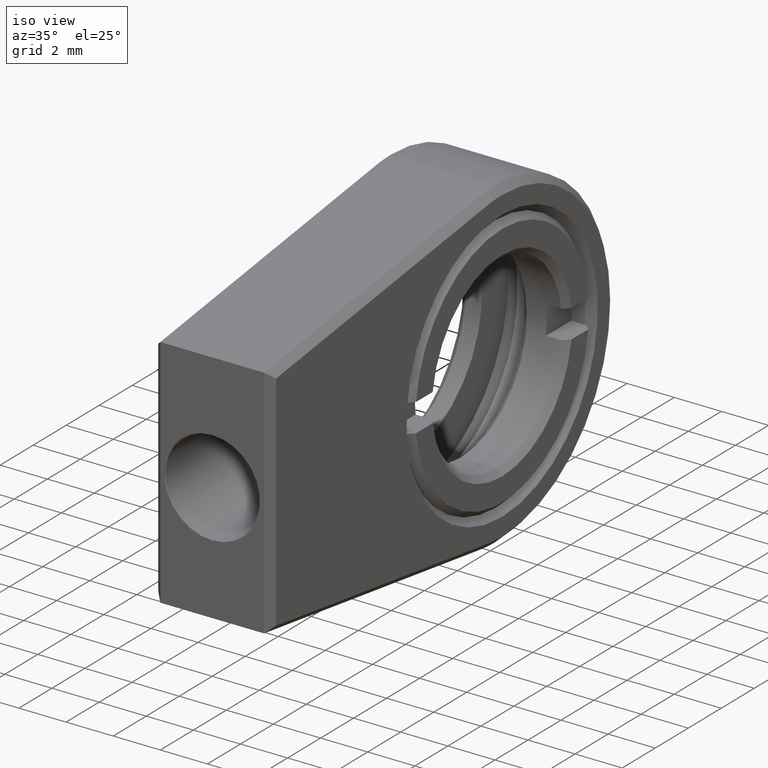
[diagram: clean part render]
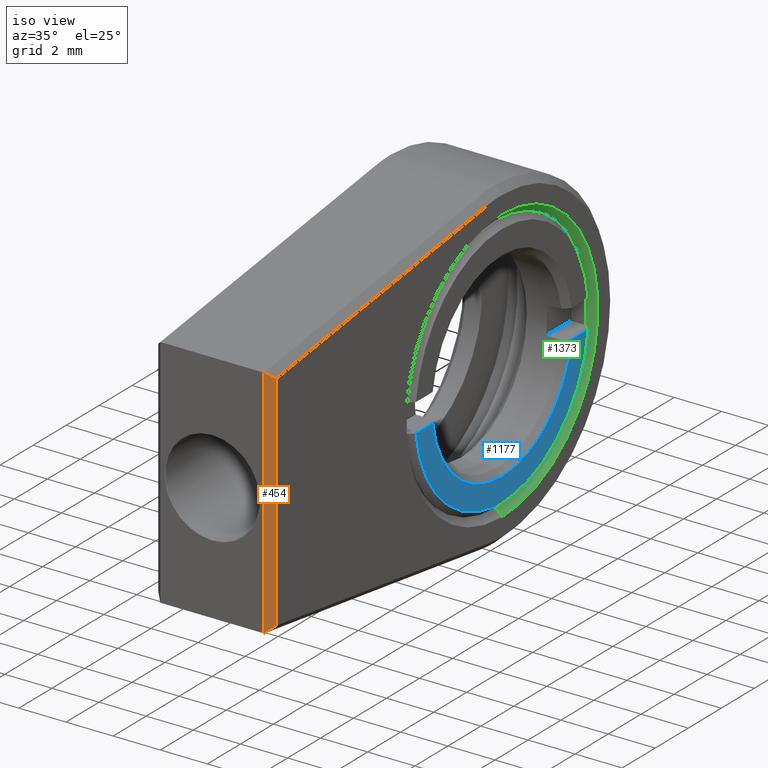
[diagram: same view with three faces highlighted in distinct colors, each labeled with its STEP entity id]
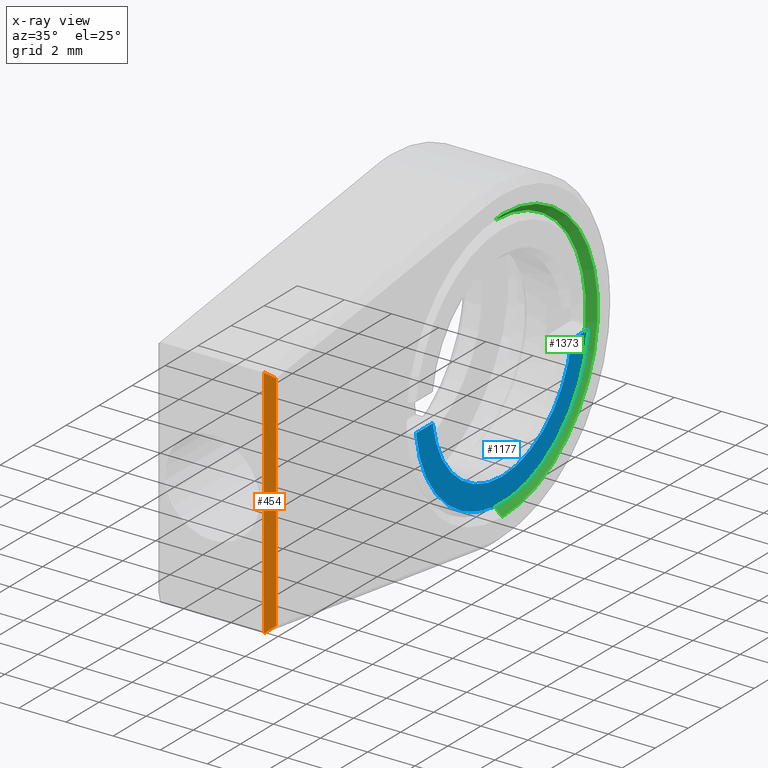
[diagram: x-ray of the same camera — body ghosted, the three highlighted faces saturated]
A machine part, iso view with three faces highlighted in distinct colors.
The next image is the same camera in x-ray (body ghosted, the three faces saturated) — at least one of them is partly hidden behind the body in this view.
Their STEP definitions:

[orange] entity #454 — the highlighted planar face has unit normal (0.7071, -0.7071, -0).
#3 = EDGE_CURVE ( 'NONE', #1518, #1194, #1137, .T. ) ;
#7 = VERTEX_POINT ( 'NONE', #1578 ) ;
#94 = DIRECTION ( 'NONE',  ( 0.0000000000000000000, -1.734723475976807094E-16, 1.000000000000000000 ) ) ;
#103 = DIRECTION ( 'NONE',  ( 0.7071067811865465735, -0.7071067811865485719, -1.226634733346701036E-16 ) ) ;
#239 = VECTOR ( 'NONE', #452, 1000.000000000000114 ) ;
#244 = CARTESIAN_POINT ( 'NONE',  ( 2.500000000000000000, -13.70000000000000462, -2.376571162088226114E-15 ) ) ;
#300 = VECTOR ( 'NONE', #94, 1000.000000000000000 ) ;
#338 = CARTESIAN_POINT ( 'NONE',  ( 2.500000000000000000, -13.70000000000000639, 4.738218082573271595 ) ) ;
#359 = LINE ( 'NONE', #1031, #1017 ) ;
#362 = LINE ( 'NONE', #771, #300 ) ;
#437 = AXIS2_PLACEMENT_3D ( 'NONE', #244, #103, #907 ) ;
#452 = DIRECTION ( 'NONE',  ( -0.6017720932335914874, -0.6017720932335898221, -0.5251101747352884264 ) ) ;
#454 = ADVANCED_FACE ( 'NONE', ( #1319 ), #1058, .T. ) ;
#501 = EDGE_LOOP ( 'NONE', ( #559, #647, #1674, #1464 ) ) ;
#559 = ORIENTED_EDGE ( 'NONE', *, *, #1192, .T. ) ;
#570 = EDGE_CURVE ( 'NONE', #1194, #7, #362, .T. ) ;
#647 = ORIENTED_EDGE ( 'NONE', *, *, #570, .F. ) ;
#702 = CARTESIAN_POINT ( 'NONE',  ( 2.200000000000003730, -13.99999999999999822, -5.000000000000001776 ) ) ;
#771 = CARTESIAN_POINT ( 'NONE',  ( 2.200000000000003730, -14.00000000000000000, 4.999999999999998224 ) ) ;
#907 = DIRECTION ( 'NONE',  ( 0.0000000000000000000, -1.734723475976807094E-16, 1.000000000000000000 ) ) ;
#994 = EDGE_CURVE ( 'NONE', #1476, #1518, #359, .T. ) ;
#1017 = VECTOR ( 'NONE', #1055, 1000.000000000000000 ) ;
#1031 = CARTESIAN_POINT ( 'NONE',  ( 2.500000000000000000, -13.70000000000000462, -5.000000000000001776 ) ) ;
#1055 = DIRECTION ( 'NONE',  ( 0.0000000000000000000, 1.734723475976807094E-16, -1.000000000000000000 ) ) ;
#1058 = PLANE ( 'NONE',  #437 ) ;
#1137 = LINE ( 'NONE', #1682, #239 ) ;
#1192 = EDGE_CURVE ( 'NONE', #1476, #7, #1396, .T. ) ;
#1194 = VERTEX_POINT ( 'NONE', #702 ) ;
#1319 = FACE_OUTER_BOUND ( 'NONE', #501, .T. ) ;
#1394 = CARTESIAN_POINT ( 'NONE',  ( 2.500000000000000000, -13.70000000000000462, -4.738218082573275147 ) ) ;
#1396 = LINE ( 'NONE', #1403, #1621 ) ;
#1403 = CARTESIAN_POINT ( 'NONE',  ( 6.586488049652779786, -9.613511950347234603, 1.172322491974863601 ) ) ;
#1464 = ORIENTED_EDGE ( 'NONE', *, *, #994, .F. ) ;
#1476 = VERTEX_POINT ( 'NONE', #338 ) ;
#1518 = VERTEX_POINT ( 'NONE', #1394 ) ;
#1578 = CARTESIAN_POINT ( 'NONE',  ( 2.200000000000003730, -14.00000000000000000, 4.999999999999998224 ) ) ;
#1621 = VECTOR ( 'NONE', #1659, 1000.000000000000000 ) ;
#1659 = DIRECTION ( 'NONE',  ( -0.6017720932335915984, -0.6017720932335899331, 0.5251101747352883153 ) ) ;
#1674 = ORIENTED_EDGE ( 'NONE', *, *, #3, .F. ) ;
#1682 = CARTESIAN_POINT ( 'NONE',  ( 3.997261036460400874, -12.20273896353960730, -3.431698532530152335 ) ) ;

[blue] entity #1177 — the highlighted planar face has unit normal (1, 0, 0).
#12 = VECTOR ( 'NONE', #1707, 1000.000000000000000 ) ;
#31 = ORIENTED_EDGE ( 'NONE', *, *, #650, .T. ) ;
#158 = CARTESIAN_POINT ( 'NONE',  ( 2.500000000000000444, 5.215601595214115704, -0.5999999999999992006 ) ) ;
#164 = VERTEX_POINT ( 'NONE', #158 ) ;
#188 = AXIS2_PLACEMENT_3D ( 'NONE', #1228, #1209, #1635 ) ;
#229 = DIRECTION ( 'NONE',  ( -1.000000000000000000, -0.0000000000000000000, -0.0000000000000000000 ) ) ;
#294 = FACE_OUTER_BOUND ( 'NONE', #1318, .T. ) ;
#310 = LINE ( 'NONE', #712, #670 ) ;
#331 = AXIS2_PLACEMENT_3D ( 'NONE', #1543, #453, #1146 ) ;
#346 = EDGE_CURVE ( 'NONE', #1343, #1545, #887, .T. ) ;
#355 = CARTESIAN_POINT ( 'NONE',  ( 2.500000000000000444, -5.215601595214115704, -0.6000000000000005329 ) ) ;
#370 = ORIENTED_EDGE ( 'NONE', *, *, #921, .T. ) ;
#413 = CARTESIAN_POINT ( 'NONE',  ( 2.500000000000000444, 4.207433897282289337, -0.5999999999999993117 ) ) ;
#433 = PLANE ( 'NONE',  #331 ) ;
#453 = DIRECTION ( 'NONE',  ( 1.000000000000000000, 0.0000000000000000000, 0.0000000000000000000 ) ) ;
#487 = EDGE_CURVE ( 'NONE', #1752, #1654, #1672, .T. ) ;
#505 = ORIENTED_EDGE ( 'NONE', *, *, #770, .F. ) ;
#584 = AXIS2_PLACEMENT_3D ( 'NONE', #918, #1182, #1195 ) ;
#622 = CARTESIAN_POINT ( 'NONE',  ( 2.500000000000000444, 0.0000000000000000000, -4.250000000000003553 ) ) ;
#650 = EDGE_CURVE ( 'NONE', #1343, #164, #1384, .T. ) ;
#670 = VECTOR ( 'NONE', #1255, 1000.000000000000000 ) ;
#712 = CARTESIAN_POINT ( 'NONE',  ( 2.500000000000000444, 105.0000000000000000, -0.5999999999999870992 ) ) ;
#770 = EDGE_CURVE ( 'NONE', #1752, #164, #310, .T. ) ;
#887 = LINE ( 'NONE', #1015, #12 ) ;
#918 = CARTESIAN_POINT ( 'NONE',  ( 2.500000000000000444, 0.0000000000000000000, 0.0000000000000000000 ) ) ;
#921 = EDGE_CURVE ( 'NONE', #1654, #1545, #1358, .T. ) ;
#1000 = CARTESIAN_POINT ( 'NONE',  ( 2.500000000000000444, -4.207433897282289337, -0.6000000000000004219 ) ) ;
#1015 = CARTESIAN_POINT ( 'NONE',  ( 2.500000000000000444, 105.0000000000000000, -0.5999999999999870992 ) ) ;
#1146 = DIRECTION ( 'NONE',  ( 0.0000000000000000000, 0.0000000000000000000, -1.000000000000000000 ) ) ;
#1177 = ADVANCED_FACE ( 'NONE', ( #294 ), #433, .T. ) ;
#1182 = DIRECTION ( 'NONE',  ( -1.000000000000000000, -0.0000000000000000000, -0.0000000000000000000 ) ) ;
#1195 = DIRECTION ( 'NONE',  ( 0.0000000000000000000, 0.0000000000000000000, -1.000000000000000000 ) ) ;
#1209 = DIRECTION ( 'NONE',  ( 1.000000000000000000, 0.0000000000000000000, 0.0000000000000000000 ) ) ;
#1228 = CARTESIAN_POINT ( 'NONE',  ( 2.500000000000000444, 0.0000000000000000000, 0.0000000000000000000 ) ) ;
#1255 = DIRECTION ( 'NONE',  ( 0.0000000000000000000, 1.000000000000000000, 1.223599594662212253E-16 ) ) ;
#1269 = ORIENTED_EDGE ( 'NONE', *, *, #346, .F. ) ;
#1318 = EDGE_LOOP ( 'NONE', ( #1269, #31, #505, #1486, #370 ) ) ;
#1343 = VERTEX_POINT ( 'NONE', #355 ) ;
#1358 = CIRCLE ( 'NONE', #584, 4.250000000000003553 ) ;
#1383 = AXIS2_PLACEMENT_3D ( 'NONE', #1616, #229, #1478 ) ;
#1384 = CIRCLE ( 'NONE', #188, 5.250000000000002665 ) ;
#1478 = DIRECTION ( 'NONE',  ( 0.0000000000000000000, 8.881784197001252323E-16, -1.000000000000000000 ) ) ;
#1486 = ORIENTED_EDGE ( 'NONE', *, *, #487, .T. ) ;
#1543 = CARTESIAN_POINT ( 'NONE',  ( 2.500000000000000444, 0.0000000000000000000, 0.0000000000000000000 ) ) ;
#1545 = VERTEX_POINT ( 'NONE', #1000 ) ;
#1616 = CARTESIAN_POINT ( 'NONE',  ( 2.500000000000000444, 0.0000000000000000000, 0.0000000000000000000 ) ) ;
#1635 = DIRECTION ( 'NONE',  ( 0.0000000000000000000, 0.0000000000000000000, -1.000000000000000000 ) ) ;
#1654 = VERTEX_POINT ( 'NONE', #622 ) ;
#1672 = CIRCLE ( 'NONE', #1383, 4.250000000000003553 ) ;
#1707 = DIRECTION ( 'NONE',  ( 0.0000000000000000000, 1.000000000000000000, 1.223599594662212253E-16 ) ) ;
#1752 = VERTEX_POINT ( 'NONE', #413 ) ;

[green] entity #1373 — the highlighted conical surface has half-angle 45 deg.
#68 = DIRECTION ( 'NONE',  ( -1.000000000000000000, -0.0000000000000000000, -0.0000000000000000000 ) ) ;
#109 = EDGE_LOOP ( 'NONE', ( #1730, #257, #462, #424 ) ) ;
#192 = AXIS2_PLACEMENT_3D ( 'NONE', #204, #1143, #1123 ) ;
#204 = CARTESIAN_POINT ( 'NONE',  ( 2.199999999999993516, 0.0000000000000000000, 0.0000000000000000000 ) ) ;
#257 = ORIENTED_EDGE ( 'NONE', *, *, #1492, .F. ) ;
#326 = CARTESIAN_POINT ( 'NONE',  ( 2.500000000000000000, 0.0000000000000000000, 0.0000000000000000000 ) ) ;
#337 = EDGE_CURVE ( 'NONE', #1282, #1572, #841, .T. ) ;
#389 = DIRECTION ( 'NONE',  ( 0.7071067811865495711, 8.659560562354906974E-17, 0.7071067811865455743 ) ) ;
#424 = ORIENTED_EDGE ( 'NONE', *, *, #337, .F. ) ;
#462 = ORIENTED_EDGE ( 'NONE', *, *, #1397, .T. ) ;
#534 = CARTESIAN_POINT ( 'NONE',  ( 2.199999999999993516, 6.735557395310441037E-16, 5.500000000000000000 ) ) ;
#582 = DIRECTION ( 'NONE',  ( 0.0000000000000000000, 0.0000000000000000000, -1.000000000000000000 ) ) ;
#624 = CARTESIAN_POINT ( 'NONE',  ( 2.199999999999993516, 0.0000000000000000000, -5.500000000000000000 ) ) ;
#728 = VECTOR ( 'NONE', #744, 1000.000000000000114 ) ;
#744 = DIRECTION ( 'NONE',  ( 0.7071067811865495711, 0.0000000000000000000, -0.7071067811865455743 ) ) ;
#800 = VERTEX_POINT ( 'NONE', #867 ) ;
#841 = CIRCLE ( 'NONE', #1300, 5.800000000000004263 ) ;
#867 = CARTESIAN_POINT ( 'NONE',  ( 2.199999999999993516, 0.0000000000000000000, -5.500000000000000000 ) ) ;
#898 = CARTESIAN_POINT ( 'NONE',  ( 2.500000000000000000, 0.0000000000000000000, -5.800000000000005151 ) ) ;
#901 = DIRECTION ( 'NONE',  ( 1.000000000000000000, 0.0000000000000000000, 0.0000000000000000000 ) ) ;
#902 = AXIS2_PLACEMENT_3D ( 'NONE', #1579, #901, #1586 ) ;
#962 = CIRCLE ( 'NONE', #192, 5.500000000000000000 ) ;
#1035 = FACE_OUTER_BOUND ( 'NONE', #109, .T. ) ;
#1064 = VERTEX_POINT ( 'NONE', #1475 ) ;
#1114 = EDGE_CURVE ( 'NONE', #1064, #1282, #1342, .T. ) ;
#1123 = DIRECTION ( 'NONE',  ( 0.0000000000000000000, 0.0000000000000000000, -1.000000000000000000 ) ) ;
#1143 = DIRECTION ( 'NONE',  ( 1.000000000000000000, 0.0000000000000000000, 0.0000000000000000000 ) ) ;
#1190 = VECTOR ( 'NONE', #389, 1000.000000000000114 ) ;
#1191 = CONICAL_SURFACE ( 'NONE', #902, 5.500000000000000000, 0.7853981633974453924 ) ;
#1282 = VERTEX_POINT ( 'NONE', #1412 ) ;
#1300 = AXIS2_PLACEMENT_3D ( 'NONE', #326, #68, #582 ) ;
#1342 = LINE ( 'NONE', #534, #1190 ) ;
#1373 = ADVANCED_FACE ( 'NONE', ( #1035 ), #1191, .F. ) ;
#1397 = EDGE_CURVE ( 'NONE', #800, #1572, #1428, .T. ) ;
#1412 = CARTESIAN_POINT ( 'NONE',  ( 2.500000000000000000, 7.102951435054652595E-16, 5.800000000000005151 ) ) ;
#1428 = LINE ( 'NONE', #624, #728 ) ;
#1475 = CARTESIAN_POINT ( 'NONE',  ( 2.199999999999993516, 6.735557395310442023E-16, 5.500000000000000000 ) ) ;
#1492 = EDGE_CURVE ( 'NONE', #800, #1064, #962, .T. ) ;
#1572 = VERTEX_POINT ( 'NONE', #898 ) ;
#1579 = CARTESIAN_POINT ( 'NONE',  ( 2.199999999999993516, 0.0000000000000000000, 0.0000000000000000000 ) ) ;
#1586 = DIRECTION ( 'NONE',  ( 0.0000000000000000000, 0.0000000000000000000, -1.000000000000000000 ) ) ;
#1730 = ORIENTED_EDGE ( 'NONE', *, *, #1114, .F. ) ;